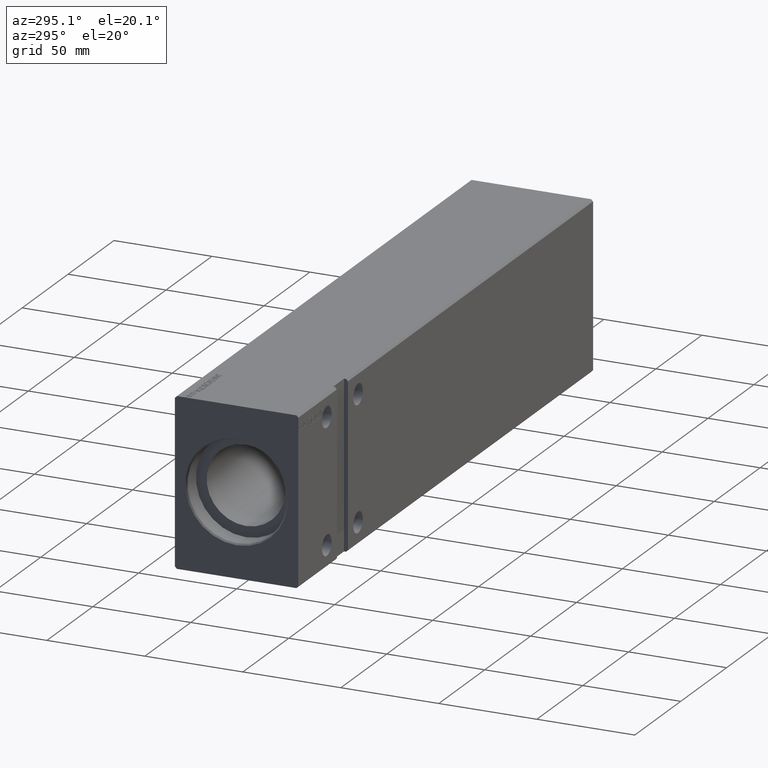
[diagram: clean part render]
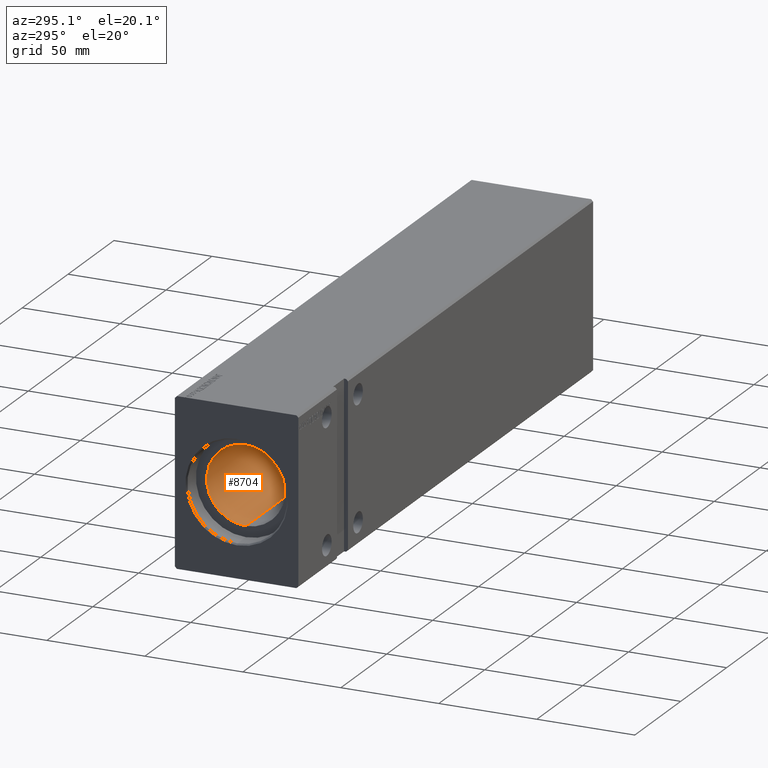
[diagram: same view with one face highlighted and labeled with its STEP entity id]
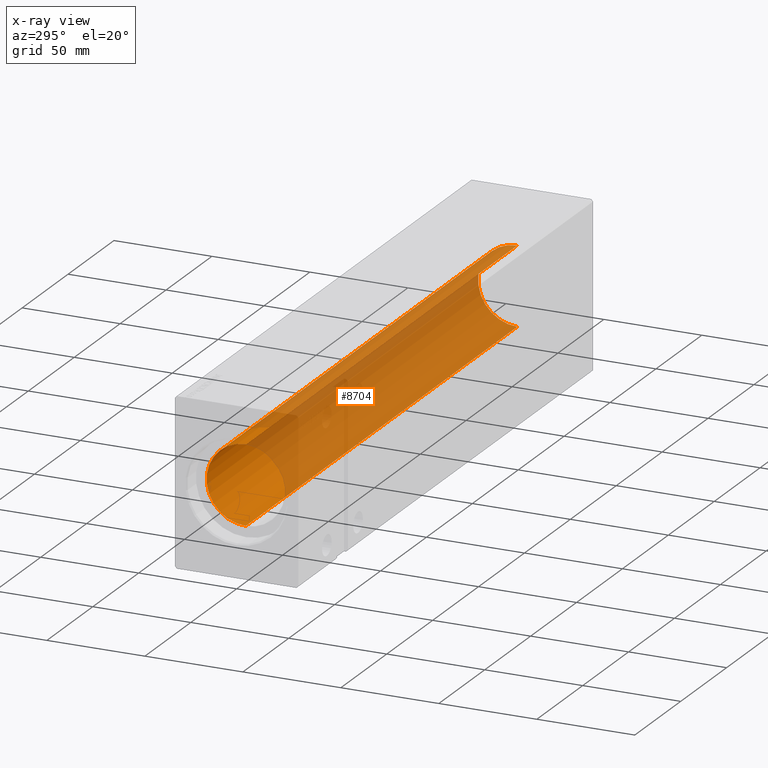
[diagram: x-ray of the same camera — body ghosted, the highlighted face saturated]
A machine part, auxiliary view. The second image highlights one B-rep face of the part: STEP entity #8704.
The next image is the same camera in x-ray: the body ghosted, the highlighted face saturated — about 81% of this face is hidden behind the body in this view.
In plain terms, the highlighted cylindrical surface (partial cylindrical patch) has radius 20 mm, axis along (-1, -0, -0).
Its self-contained STEP definition (entity closure, byte-faithful):
#2276 = DIRECTION ( 'NONE',  ( 0.000000000000000000, 0.000000000000000000, 1.000000000000000000 ) ) ;
#2741 = DIRECTION ( 'NONE',  ( -1.000000000000000000, -0.000000000000000000, -0.000000000000000000 ) ) ;
#3028 = AXIS2_PLACEMENT_3D ( 'NONE', #39697, #3950, #33098 ) ;
#3950 = DIRECTION ( 'NONE',  ( -1.000000000000000000, 0.000000000000000000, 0.000000000000000000 ) ) ;
#5563 = ORIENTED_EDGE ( 'NONE', *, *, #28841, .F. ) ;
#6059 = VERTEX_POINT ( 'NONE', #30850 ) ;
#7628 = ORIENTED_EDGE ( 'NONE', *, *, #14566, .T. ) ;
#7809 = LINE ( 'NONE', #21196, #34436 ) ;
#8704 = ADVANCED_FACE ( 'NONE', ( #39432 ), #23878, .F. ) ;
#8918 = CARTESIAN_POINT ( 'NONE',  ( 305.6999999999999886, 0.000000000000000000, 20.00000000000000000 ) ) ;
#10472 = DIRECTION ( 'NONE',  ( 0.000000000000000000, 0.000000000000000000, 1.000000000000000000 ) ) ;
#14566 = EDGE_CURVE ( 'NONE', #6059, #34589, #15091, .T. ) ;
#14741 = AXIS2_PLACEMENT_3D ( 'NONE', #18436, #31432, #2276 ) ;
#15091 = LINE ( 'NONE', #8918, #36852 ) ;
#16638 = CARTESIAN_POINT ( 'NONE',  ( 305.6999999999999886, 0.000000000000000000, 0.000000000000000000 ) ) ;
#17583 = DIRECTION ( 'NONE',  ( -1.000000000000000000, -0.000000000000000000, -0.000000000000000000 ) ) ;
#18436 = CARTESIAN_POINT ( 'NONE',  ( 10.00000000000000888, 0.000000000000000000, 0.000000000000000000 ) ) ;
#20520 = EDGE_CURVE ( 'NONE', #6059, #27004, #29515, .T. ) ;
#21196 = CARTESIAN_POINT ( 'NONE',  ( 305.6999999999999886, 2.449293598294706513E-15, -20.00000000000000000 ) ) ;
#23878 = CYLINDRICAL_SURFACE ( 'NONE', #31413, 20.00000000000000000 ) ;
#24673 = CARTESIAN_POINT ( 'NONE',  ( 10.00000000000000888, 2.449293598294706513E-15, -20.00000000000000000 ) ) ;
#24933 = CIRCLE ( 'NONE', #14741, 20.00000000000000000 ) ;
#27004 = VERTEX_POINT ( 'NONE', #29761 ) ;
#28714 = EDGE_LOOP ( 'NONE', ( #5563, #37495, #7628, #40599 ) ) ;
#28841 = EDGE_CURVE ( 'NONE', #27004, #32902, #7809, .T. ) ;
#29515 = CIRCLE ( 'NONE', #3028, 20.00000000000000000 ) ;
#29761 = CARTESIAN_POINT ( 'NONE',  ( 305.6999999999999886, 2.449293598294706513E-15, -20.00000000000000000 ) ) ;
#30850 = CARTESIAN_POINT ( 'NONE',  ( 305.6999999999999886, 0.000000000000000000, 20.00000000000000000 ) ) ;
#30945 = EDGE_CURVE ( 'NONE', #34589, #32902, #24933, .T. ) ;
#31413 = AXIS2_PLACEMENT_3D ( 'NONE', #16638, #39223, #10472 ) ;
#31432 = DIRECTION ( 'NONE',  ( -1.000000000000000000, 0.000000000000000000, 0.000000000000000000 ) ) ;
#32902 = VERTEX_POINT ( 'NONE', #24673 ) ;
#33098 = DIRECTION ( 'NONE',  ( 0.000000000000000000, 0.000000000000000000, 1.000000000000000000 ) ) ;
#34436 = VECTOR ( 'NONE', #17583, 1000.000000000000000 ) ;
#34589 = VERTEX_POINT ( 'NONE', #38541 ) ;
#36852 = VECTOR ( 'NONE', #2741, 1000.000000000000000 ) ;
#37495 = ORIENTED_EDGE ( 'NONE', *, *, #20520, .F. ) ;
#38541 = CARTESIAN_POINT ( 'NONE',  ( 10.00000000000000888, 0.000000000000000000, 20.00000000000000000 ) ) ;
#39223 = DIRECTION ( 'NONE',  ( -1.000000000000000000, -0.000000000000000000, -0.000000000000000000 ) ) ;
#39432 = FACE_OUTER_BOUND ( 'NONE', #28714, .T. ) ;
#39697 = CARTESIAN_POINT ( 'NONE',  ( 305.6999999999999886, 0.000000000000000000, 0.000000000000000000 ) ) ;
#40599 = ORIENTED_EDGE ( 'NONE', *, *, #30945, .T. ) ;